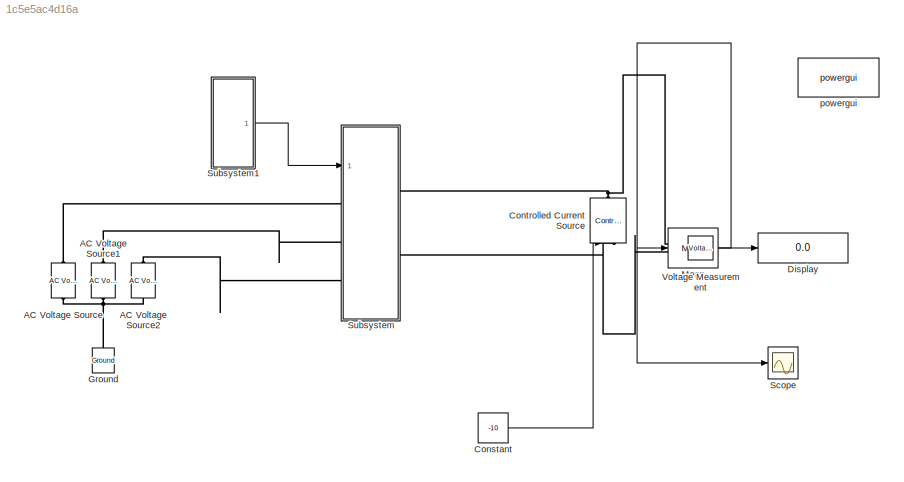
MODEL slx_1c5e5ac4d16a
KIND model
CONFIG AbsTol = auto
CONFIG EnableMultiTasking = off
CONFIG FixedStep = auto
CONFIG MaxStep = 1e-6
CONFIG MinStep = auto
CONFIG RelTol = 1e-3
CONFIG SampleTimeConstraint = Unconstrained
CONFIG SolverName = VariableStepAuto
CONFIG StartTime = 0.0
CONFIG StopTime = 0.8
BLOCK [Reference] AC Voltage Source  REF=spsACVoltageSourceLib/AC Voltage Source
  Ports = [0, 0, 0, 0, 0, 1, 1]
  SourceBlock = spsACVoltageSourceLib/AC Voltage Source
  SourceProductBaseCode = PS
  SourceType = AC Voltage Source
BLOCK [Reference] AC Voltage Source1  REF=spsACVoltageSourceLib/AC Voltage Source
  Ports = [0, 0, 0, 0, 0, 1, 1]
  SourceBlock = spsACVoltageSourceLib/AC Voltage Source
  SourceProductBaseCode = PS
  SourceType = AC Voltage Source
BLOCK [Reference] AC Voltage Source2  REF=spsACVoltageSourceLib/AC Voltage Source
  Ports = [0, 0, 0, 0, 0, 1, 1]
  SourceBlock = spsACVoltageSourceLib/AC Voltage Source
  SourceProductBaseCode = PS
  SourceType = AC Voltage Source
BLOCK [Constant] Constant
  Value = -10
BLOCK [Reference] Controlled Current Source  REF=spsControlledCurrentSourceLib/Controlled Current Source
  Ports = [1, 0, 0, 0, 0, 1, 1]
  SourceBlock = spsControlledCurrentSourceLib/Controlled Current Source
  SourceProductBaseCode = PS
  SourceType = Controlled Current Source
BLOCK [Display] Display
  Decimation = 1
  Ports = [1]
BLOCK [Reference] Ground  REF=spsGroundLib/Ground
  NameLocation = right
  Ports = [0, 0, 0, 0, 0, 1]
  SourceBlock = spsGroundLib/Ground
  SourceProductBaseCode = PS
  SourceType = Ground
BLOCK [Reference] Mean  REF=spsMeanLib/Mean
  Ports = [1, 1]
  SourceBlock = spsMeanLib/Mean
  SourceProductBaseCode = PS
  SourceType = Mean
BLOCK [Scope] Scope
  Floating = off
  NumInputPorts = 1
  Ports = [1]
  ScopeSpecificationString = Simulink.scopes.TimeScopeBlockCfg('CurrentConfiguration', extmgr.ConfigurationSet(extmgr.Configuration('Core','General UI',true,'FigureColor',[1 1 1]),extmgr.Configuration('Core','Source UI',true),extmgr.Configuration('Sources','WiredSimulink',true),extmgr.Configuration('Visuals','Time Domain',true,'SerializedDisplays',{struct('MinYLimReal','-1304.2051','MaxYLimReal','1426.94013','YLabelReal','','...<+1553ch>
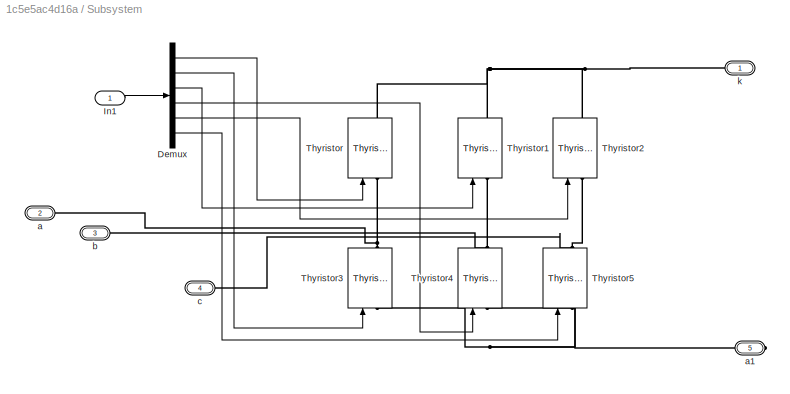
BLOCK [SubSystem] Subsystem
  Ports = [1, 0, 0, 0, 0, 3, 2]
  RequestExecContextInheritance = off
BLOCK [Demux] Subsystem/Demux
  Outputs = 6
  Ports = [1, 6]
BLOCK [Inport] Subsystem/In1
BLOCK [Reference] Subsystem/Thyristor  REF=spsThyristorLib/Thyristor
  NameLocation = right
  Ports = [1, 1, 0, 0, 0, 1, 1]
  SourceBlock = spsThyristorLib/Thyristor
  SourceProductBaseCode = PS
  SourceType = Thyristor
BLOCK [Reference] Subsystem/Thyristor1  REF=spsThyristorLib/Thyristor
  NameLocation = right
  Ports = [1, 1, 0, 0, 0, 1, 1]
  SourceBlock = spsThyristorLib/Thyristor
  SourceProductBaseCode = PS
  SourceType = Thyristor
BLOCK [Reference] Subsystem/Thyristor2  REF=spsThyristorLib/Thyristor
  NameLocation = right
  Ports = [1, 1, 0, 0, 0, 1, 1]
  SourceBlock = spsThyristorLib/Thyristor
  SourceProductBaseCode = PS
  SourceType = Thyristor
BLOCK [Reference] Subsystem/Thyristor3  REF=spsThyristorLib/Thyristor
  NameLocation = right
  Ports = [1, 1, 0, 0, 0, 1, 1]
  SourceBlock = spsThyristorLib/Thyristor
  SourceProductBaseCode = PS
  SourceType = Thyristor
BLOCK [Reference] Subsystem/Thyristor4  REF=spsThyristorLib/Thyristor
  NameLocation = right
  Ports = [1, 1, 0, 0, 0, 1, 1]
  SourceBlock = spsThyristorLib/Thyristor
  SourceProductBaseCode = PS
  SourceType = Thyristor
BLOCK [Reference] Subsystem/Thyristor5  REF=spsThyristorLib/Thyristor
  NameLocation = right
  Ports = [1, 1, 0, 0, 0, 1, 1]
  SourceBlock = spsThyristorLib/Thyristor
  SourceProductBaseCode = PS
  SourceType = Thyristor
BLOCK [PMIOPort] Subsystem/a
  Port = 2
  Side = Left
BLOCK [PMIOPort] Subsystem/a1
  Port = 5
  Side = Right
BLOCK [PMIOPort] Subsystem/b
  Port = 3
  Side = Left
BLOCK [PMIOPort] Subsystem/c
  Port = 4
  Side = Left
BLOCK [PMIOPort] Subsystem/k
  Side = Right
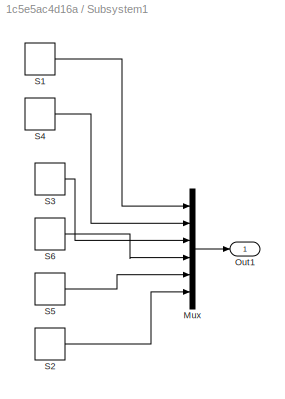
BLOCK [SubSystem] Subsystem1
  Ports = [0, 1]
  RequestExecContextInheritance = off
BLOCK [Mux] Subsystem1/Mux
  DisplayOption = bar
  Inputs = 6
  Ports = [6, 1]
BLOCK [Outport] Subsystem1/Out1
BLOCK [DiscretePulseGenerator] Subsystem1/S1
  Period = 0.02
  Ports = [0, 1]
  PulseType = Time based
  PulseWidth = 1/3*100
BLOCK [DiscretePulseGenerator] Subsystem1/S2
  Period = 0.02
  PhaseDelay = -60/360*0.02
  Ports = [0, 1]
  PulseType = Time based
  PulseWidth = 1/3*100
BLOCK [DiscretePulseGenerator] Subsystem1/S3
  Period = 0.02
  PhaseDelay = -120/360*0.02
  Ports = [0, 1]
  PulseType = Time based
  PulseWidth = 1/3*100
BLOCK [DiscretePulseGenerator] Subsystem1/S4
  Period = 0.02
  PhaseDelay = -180/360*0.02
  Ports = [0, 1]
  PulseType = Time based
  PulseWidth = 1/3*100
BLOCK [DiscretePulseGenerator] Subsystem1/S5
  Period = 0.02
  PhaseDelay = -240/360*0.02
  Ports = [0, 1]
  PulseType = Time based
  PulseWidth = 1/3*100
BLOCK [DiscretePulseGenerator] Subsystem1/S6
  Period = 0.02
  PhaseDelay = -300/360*0.02
  Ports = [0, 1]
  PulseType = Time based
  PulseWidth = 1/3*100
BLOCK [Reference] Voltage Measurement  REF=spsVoltageMeasurementLib/Voltage Measurement
  Ports = [0, 1, 0, 0, 0, 2]
  SourceBlock = spsVoltageMeasurementLib/Voltage Measurement
  SourceProductBaseCode = PS
  SourceType = Voltage Measurement
  UserDataPersistent = on
BLOCK [Reference] powergui  REF=spspowerguiLib/powergui
  Ports = []
  Priority = 1
  SourceBlock = spspowerguiLib/powergui
  SourceProductBaseCode = PS
  SourceType = PSB option menu block
LINE Constant:1 -> Controlled Current Source:1
LINE Mean:1 -> Display:1
LINE Subsystem/Demux:1 -> Subsystem/Thyristor:1
LINE Subsystem/Demux:2 -> Subsystem/Thyristor3:1
LINE Subsystem/Demux:3 -> Subsystem/Thyristor1:1
LINE Subsystem/Demux:4 -> Subsystem/Thyristor4:1
LINE Subsystem/Demux:5 -> Subsystem/Thyristor2:1
LINE Subsystem/Demux:6 -> Subsystem/Thyristor5:1
LINE Subsystem/In1:1 -> Subsystem/Demux:1
LINE Subsystem1/Mux:1 -> Subsystem1/Out1:1
LINE Subsystem1/S1:1 -> Subsystem1/Mux:1
LINE Subsystem1/S2:1 -> Subsystem1/Mux:6
LINE Subsystem1/S3:1 -> Subsystem1/Mux:3
LINE Subsystem1/S4:1 -> Subsystem1/Mux:2
LINE Subsystem1/S5:1 -> Subsystem1/Mux:5
LINE Subsystem1/S6:1 -> Subsystem1/Mux:4
LINE Subsystem1:1 -> Subsystem:1
NET Voltage Measurement:1 -> Mean:1, Scope:1
PNET net1: AC Voltage Source1:LConn1 -- AC Voltage Source2:LConn1 -- AC Voltage Source:LConn1 -- Ground:LConn1
PLINE AC Voltage Source1:RConn1 -- Subsystem:LConn2
PLINE AC Voltage Source2:RConn1 -- Subsystem:LConn3
PLINE AC Voltage Source:RConn1 -- Subsystem:LConn1
PNET net2: Controlled Current Source:LConn1 -- Subsystem:RConn2 -- Voltage Measurement:LConn2
PNET net3: Controlled Current Source:RConn1 -- Subsystem:RConn1 -- Voltage Measurement:LConn1
PNET net4: Subsystem/Thyristor1:LConn1 -- Subsystem/Thyristor4:RConn1 -- Subsystem/b:RConn1
PNET net5: Subsystem/Thyristor1:RConn1 -- Subsystem/Thyristor2:RConn1 -- Subsystem/Thyristor:RConn1 -- Subsystem/k:RConn1
PNET net6: Subsystem/Thyristor2:LConn1 -- Subsystem/Thyristor5:RConn1 -- Subsystem/c:RConn1
PNET net7: Subsystem/Thyristor3:LConn1 -- Subsystem/Thyristor4:LConn1 -- Subsystem/Thyristor5:LConn1 -- Subsystem/a1:RConn1
PNET net8: Subsystem/Thyristor3:RConn1 -- Subsystem/Thyristor:LConn1 -- Subsystem/a:RConn1
note: NET lines group one-source signal fan-out (src -> all destinations, sorted); 1:1 wires keep LINE; PNET lines group multi-terminal physical nets as a canonical sorted terminal list (undirected conserving connections); 2-terminal nets keep the pairwise PLINE form
